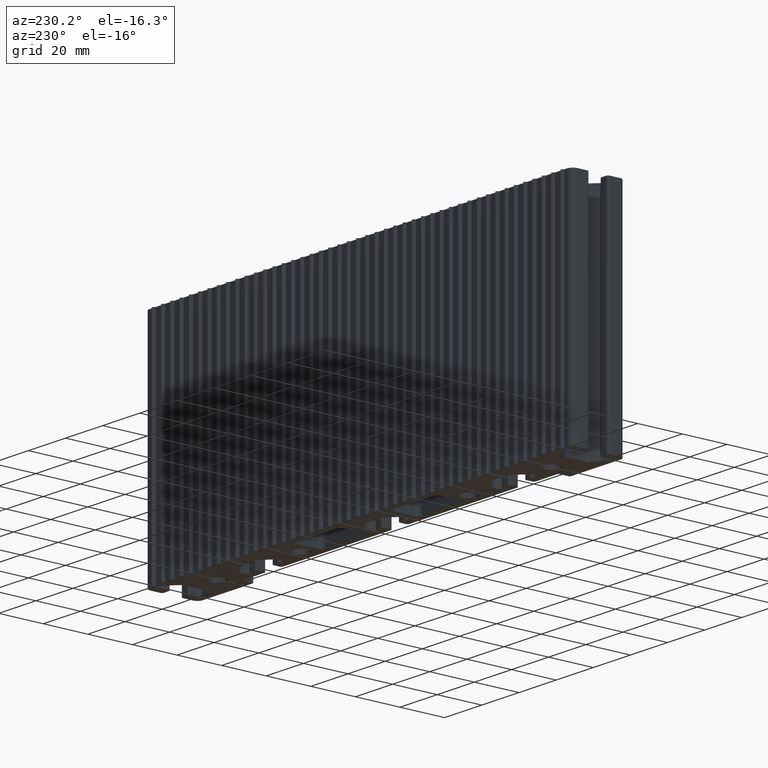
[diagram: clean part render]
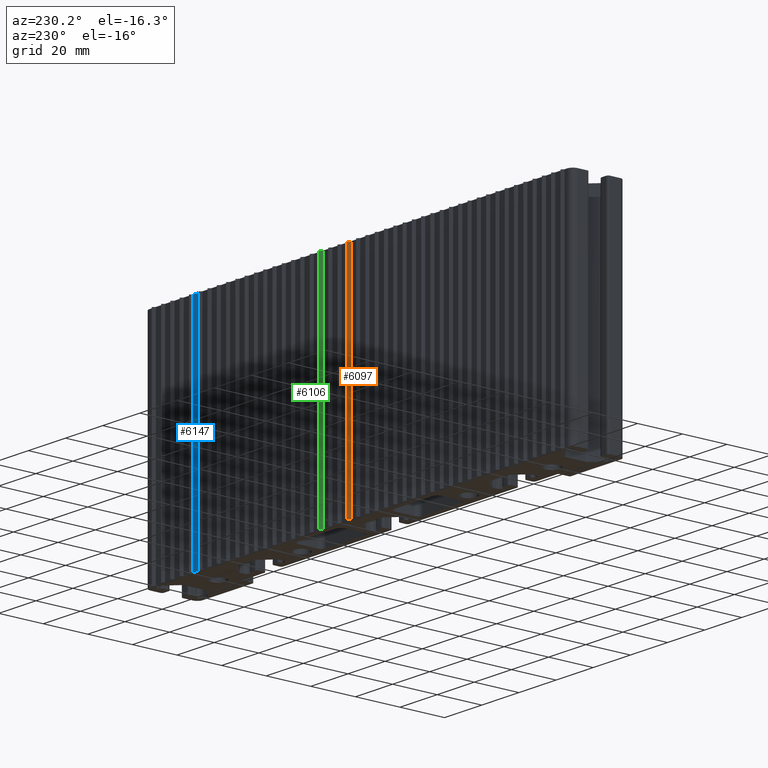
[diagram: same view with three faces highlighted in distinct colors, each labeled with its STEP entity id]
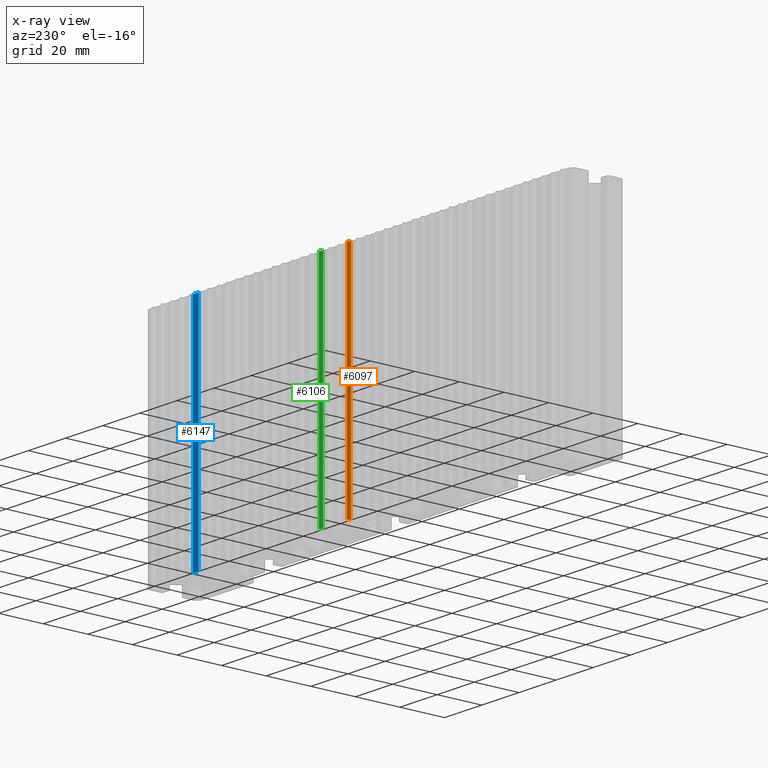
[diagram: x-ray of the same camera — body ghosted, the three highlighted faces saturated]
A machine part, auxiliary view with three faces highlighted in distinct colors.
The next image is the same camera in x-ray (body ghosted, the three faces saturated) — at least one of them is partly hidden behind the body in this view.
Their STEP definitions:

[orange] entity #6097 — the highlighted planar face has unit normal (-0.7071, 0.7071, 0).
#170=PLANE('',#6532);
#458=FACE_OUTER_BOUND('',#765,.T.);
#765=EDGE_LOOP('',(#4823,#4824,#4825,#4826));
#1354=LINE('',#9551,#2093);
#1355=LINE('',#9554,#2094);
#1356=LINE('',#9556,#2095);
#1357=LINE('',#9557,#2096);
#2093=VECTOR('',#7809,100.);
#2094=VECTOR('',#7812,1.4142135623731);
#2095=VECTOR('',#7813,1.4142135623731);
#2096=VECTOR('',#7814,100.);
#2922=VERTEX_POINT('',#9547);
#2923=VERTEX_POINT('',#9549);
#2924=VERTEX_POINT('',#9553);
#2925=VERTEX_POINT('',#9555);
#3724=EDGE_CURVE('',#2922,#2923,#1354,.T.);
#3725=EDGE_CURVE('',#2922,#2924,#1355,.T.);
#3726=EDGE_CURVE('',#2925,#2923,#1356,.T.);
#3727=EDGE_CURVE('',#2924,#2925,#1357,.T.);
#4823=ORIENTED_EDGE('',*,*,#3725,.F.);
#4824=ORIENTED_EDGE('',*,*,#3724,.T.);
#4825=ORIENTED_EDGE('',*,*,#3726,.F.);
#4826=ORIENTED_EDGE('',*,*,#3727,.F.);
#6097=ADVANCED_FACE('',(#458),#170,.T.);
#6532=AXIS2_PLACEMENT_3D('',#9552,#7810,#7811);
#7809=DIRECTION('',(0.,0.,1.));
#7810=DIRECTION('center_axis',(-0.707106781186541,0.707106781186554,0.));
#7811=DIRECTION('ref_axis',(-0.707106781186554,-0.707106781186541,0.));
#7812=DIRECTION('',(0.707106781186554,0.707106781186541,0.));
#7813=DIRECTION('',(-0.707106781186554,-0.707106781186541,0.));
#7814=DIRECTION('',(0.,0.,1.));
#9547=CARTESIAN_POINT('',(4.,12.,0.));
#9549=CARTESIAN_POINT('',(4.,12.,100.));
#9551=CARTESIAN_POINT('',(4.,12.,0.));
#9552=CARTESIAN_POINT('Origin',(5.00000000000002,13.,0.));
#9553=CARTESIAN_POINT('',(5.00000000000002,13.,0.));
#9554=CARTESIAN_POINT('',(4.,12.,0.));
#9555=CARTESIAN_POINT('',(5.00000000000002,13.,100.));
#9556=CARTESIAN_POINT('',(4.,12.,100.));
#9557=CARTESIAN_POINT('',(5.00000000000002,13.,0.));

[blue] entity #6147 — the highlighted planar face has unit normal (0, 1, 0).
#220=PLANE('',#6582);
#508=FACE_OUTER_BOUND('',#815,.T.);
#815=EDGE_LOOP('',(#5023,#5024,#5025,#5026));
#1504=LINE('',#9851,#2243);
#1505=LINE('',#9854,#2244);
#1506=LINE('',#9856,#2245);
#1507=LINE('',#9857,#2246);
#2243=VECTOR('',#8059,100.);
#2244=VECTOR('',#8062,2.99999999999997);
#2245=VECTOR('',#8063,2.99999999999997);
#2246=VECTOR('',#8064,100.);
#3022=VERTEX_POINT('',#9847);
#3023=VERTEX_POINT('',#9849);
#3024=VERTEX_POINT('',#9853);
#3025=VERTEX_POINT('',#9855);
#3874=EDGE_CURVE('',#3022,#3023,#1504,.T.);
#3875=EDGE_CURVE('',#3022,#3024,#1505,.T.);
#3876=EDGE_CURVE('',#3025,#3023,#1506,.T.);
#3877=EDGE_CURVE('',#3024,#3025,#1507,.T.);
#5023=ORIENTED_EDGE('',*,*,#3875,.F.);
#5024=ORIENTED_EDGE('',*,*,#3874,.T.);
#5025=ORIENTED_EDGE('',*,*,#3876,.F.);
#5026=ORIENTED_EDGE('',*,*,#3877,.F.);
#6147=ADVANCED_FACE('',(#508),#220,.T.);
#6582=AXIS2_PLACEMENT_3D('',#9852,#8060,#8061);
#8059=DIRECTION('',(0.,0.,1.));
#8060=DIRECTION('center_axis',(0.,1.,0.));
#8061=DIRECTION('ref_axis',(-1.,0.,0.));
#8062=DIRECTION('',(1.,0.,0.));
#8063=DIRECTION('',(-1.,0.,0.));
#8064=DIRECTION('',(0.,0.,1.));
#9847=CARTESIAN_POINT('',(86.,12.,0.));
#9849=CARTESIAN_POINT('',(86.,12.,100.));
#9851=CARTESIAN_POINT('',(86.,12.,0.));
#9852=CARTESIAN_POINT('Origin',(89.,12.,0.));
#9853=CARTESIAN_POINT('',(89.,12.,0.));
#9854=CARTESIAN_POINT('',(86.,12.,0.));
#9855=CARTESIAN_POINT('',(89.,12.,100.));
#9856=CARTESIAN_POINT('',(86.,12.,100.));
#9857=CARTESIAN_POINT('',(89.,12.,0.));

[green] entity #6106 — the highlighted planar face has unit normal (-0.7071, 0.7071, 0).
#179=PLANE('',#6541);
#467=FACE_OUTER_BOUND('',#774,.T.);
#774=EDGE_LOOP('',(#4859,#4860,#4861,#4862));
#1381=LINE('',#9605,#2120);
#1382=LINE('',#9608,#2121);
#1383=LINE('',#9610,#2122);
#1384=LINE('',#9611,#2123);
#2120=VECTOR('',#7854,100.);
#2121=VECTOR('',#7857,1.4142135623731);
#2122=VECTOR('',#7858,1.4142135623731);
#2123=VECTOR('',#7859,100.);
#2940=VERTEX_POINT('',#9601);
#2941=VERTEX_POINT('',#9603);
#2942=VERTEX_POINT('',#9607);
#2943=VERTEX_POINT('',#9609);
#3751=EDGE_CURVE('',#2940,#2941,#1381,.T.);
#3752=EDGE_CURVE('',#2940,#2942,#1382,.T.);
#3753=EDGE_CURVE('',#2943,#2941,#1383,.T.);
#3754=EDGE_CURVE('',#2942,#2943,#1384,.T.);
#4859=ORIENTED_EDGE('',*,*,#3752,.F.);
#4860=ORIENTED_EDGE('',*,*,#3751,.T.);
#4861=ORIENTED_EDGE('',*,*,#3753,.F.);
#4862=ORIENTED_EDGE('',*,*,#3754,.F.);
#6106=ADVANCED_FACE('',(#467),#179,.T.);
#6541=AXIS2_PLACEMENT_3D('',#9606,#7855,#7856);
#7854=DIRECTION('',(0.,0.,1.));
#7855=DIRECTION('center_axis',(-0.707106781186541,0.707106781186554,0.));
#7856=DIRECTION('ref_axis',(-0.707106781186554,-0.707106781186541,0.));
#7857=DIRECTION('',(0.707106781186554,0.707106781186541,0.));
#7858=DIRECTION('',(-0.707106781186554,-0.707106781186541,0.));
#7859=DIRECTION('',(0.,0.,1.));
#9601=CARTESIAN_POINT('',(19.,12.,0.));
#9603=CARTESIAN_POINT('',(19.,12.,100.));
#9605=CARTESIAN_POINT('',(19.,12.,0.));
#9606=CARTESIAN_POINT('Origin',(20.,13.,0.));
#9607=CARTESIAN_POINT('',(20.,13.,0.));
#9608=CARTESIAN_POINT('',(19.,12.,0.));
#9609=CARTESIAN_POINT('',(20.,13.,100.));
#9610=CARTESIAN_POINT('',(19.,12.,100.));
#9611=CARTESIAN_POINT('',(20.,13.,0.));